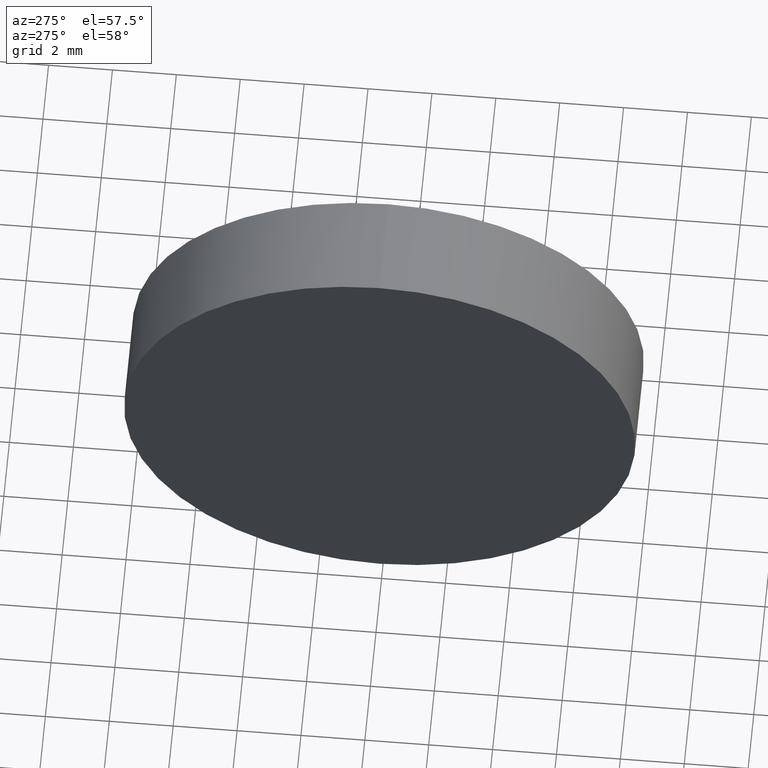
[diagram: clean part render]
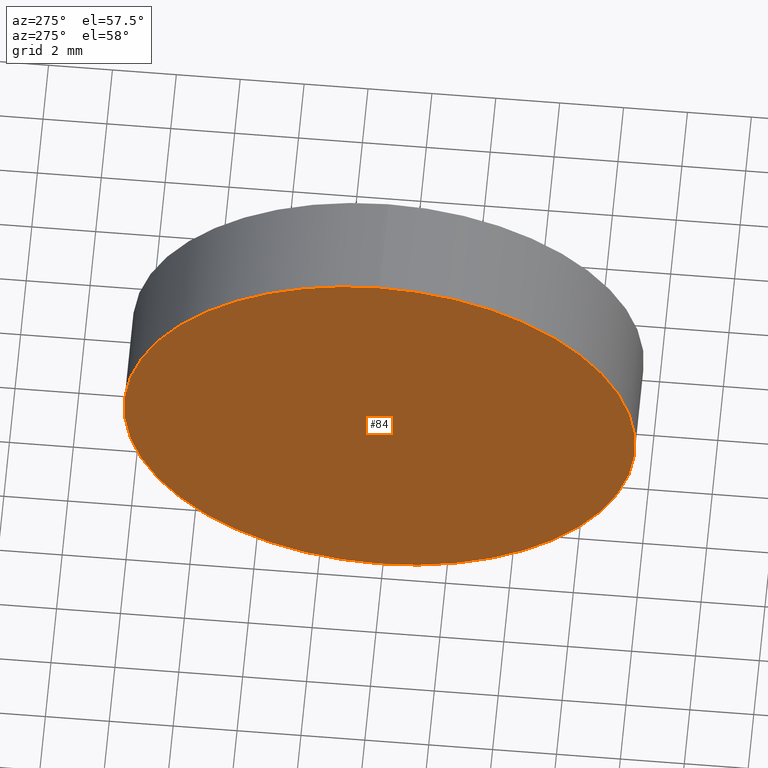
[diagram: same view with one face highlighted and labeled with its STEP entity id]
A machine part, auxiliary view. The second image highlights one B-rep face of the part: STEP entity #84.
In plain terms, the highlighted planar face has unit normal (1, 0, 0).
Its self-contained STEP definition (entity closure, byte-faithful):
#8 = CARTESIAN_POINT ( 'NONE',  ( 44.31915269315436500, 26.08904114919495900, 0.0000000000000000000 ) ) ;
#11 = AXIS2_PLACEMENT_3D ( 'NONE', #8, #67, #152 ) ;
#17 = VERTEX_POINT ( 'NONE', #74 ) ;
#20 = AXIS2_PLACEMENT_3D ( 'NONE', #154, #116, #129 ) ;
#21 = CIRCLE ( 'NONE', #111, 8.000000000000003600 ) ;
#61 = EDGE_LOOP ( 'NONE', ( #94, #63 ) ) ;
#63 = ORIENTED_EDGE ( 'NONE', *, *, #123, .T. ) ;
#67 = DIRECTION ( 'NONE',  ( 1.000000000000000000, 0.0000000000000000000, 0.0000000000000000000 ) ) ;
#69 = CARTESIAN_POINT ( 'NONE',  ( 44.31915269315436500, 26.08904114919495900, 0.0000000000000000000 ) ) ;
#74 = CARTESIAN_POINT ( 'NONE',  ( 44.31915269315436500, 26.08904114919495900, -8.000000000000003600 ) ) ;
#84 = ADVANCED_FACE ( 'NONE', ( #161 ), #121, .F. ) ;
#94 = ORIENTED_EDGE ( 'NONE', *, *, #103, .T. ) ;
#97 = VERTEX_POINT ( 'NONE', #136 ) ;
#103 = EDGE_CURVE ( 'NONE', #97, #17, #21, .T. ) ;
#111 = AXIS2_PLACEMENT_3D ( 'NONE', #69, #157, #141 ) ;
#116 = DIRECTION ( 'NONE',  ( -1.000000000000000000, -0.0000000000000000000, -0.0000000000000000000 ) ) ;
#121 = PLANE ( 'NONE',  #11 ) ;
#123 = EDGE_CURVE ( 'NONE', #17, #97, #143, .T. ) ;
#129 = DIRECTION ( 'NONE',  ( 0.0000000000000000000, 0.0000000000000000000, 1.000000000000000000 ) ) ;
#136 = CARTESIAN_POINT ( 'NONE',  ( 44.31915269315436500, 26.08904114919495900, 8.000000000000003600 ) ) ;
#141 = DIRECTION ( 'NONE',  ( 0.0000000000000000000, 0.0000000000000000000, 1.000000000000000000 ) ) ;
#143 = CIRCLE ( 'NONE', #20, 8.000000000000003600 ) ;
#152 = DIRECTION ( 'NONE',  ( 0.0000000000000000000, 0.0000000000000000000, -1.000000000000000000 ) ) ;
#154 = CARTESIAN_POINT ( 'NONE',  ( 44.31915269315436500, 26.08904114919495900, 0.0000000000000000000 ) ) ;
#157 = DIRECTION ( 'NONE',  ( -1.000000000000000000, -0.0000000000000000000, -0.0000000000000000000 ) ) ;
#161 = FACE_OUTER_BOUND ( 'NONE', #61, .T. ) ;